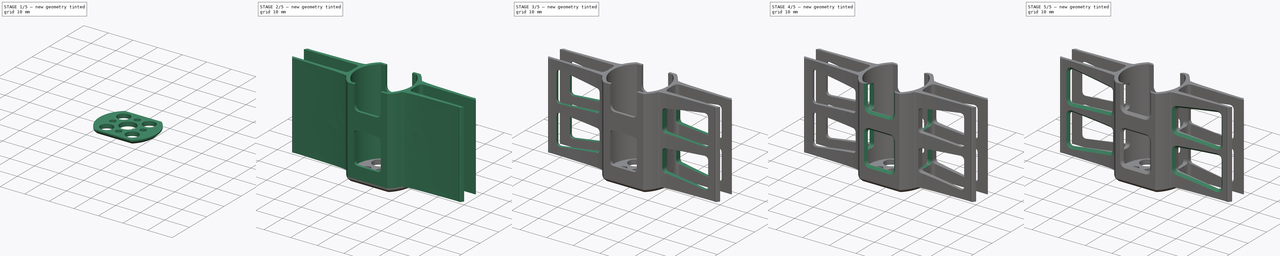
[diagram: build sequence overview — one tinted view per stage of 5, left to right]
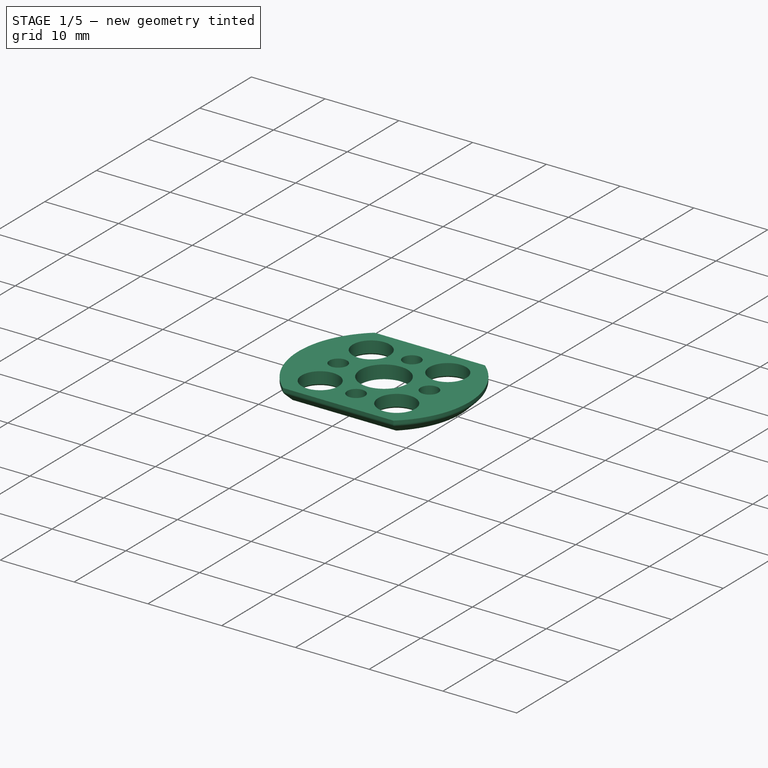
[diagram: stage 1 of 5 — iso view after this stage's code; geometry added in this stage tinted green]
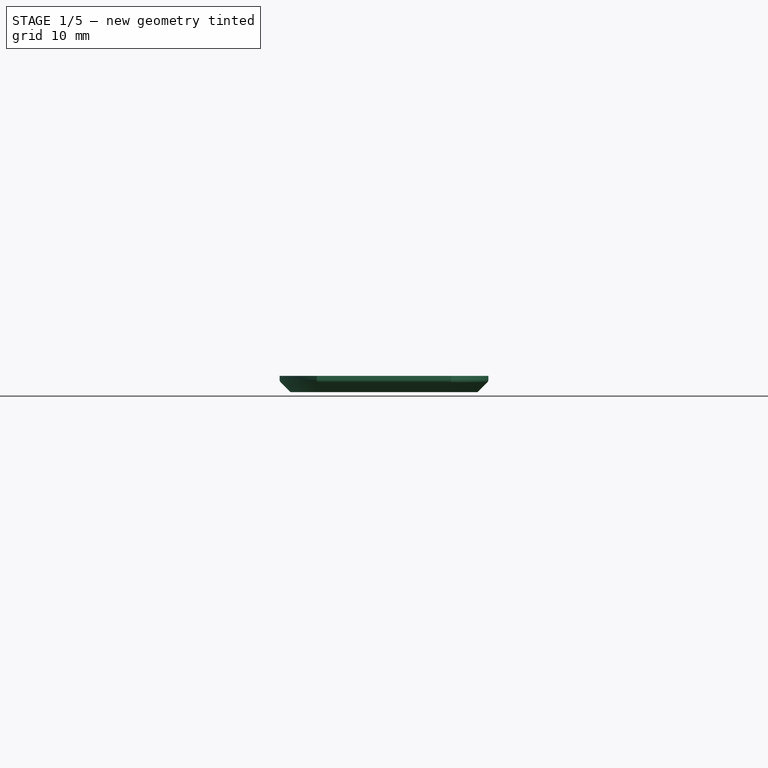
[diagram: stage 1 of 5 — front view after this stage's code; geometry added in this stage tinted green]
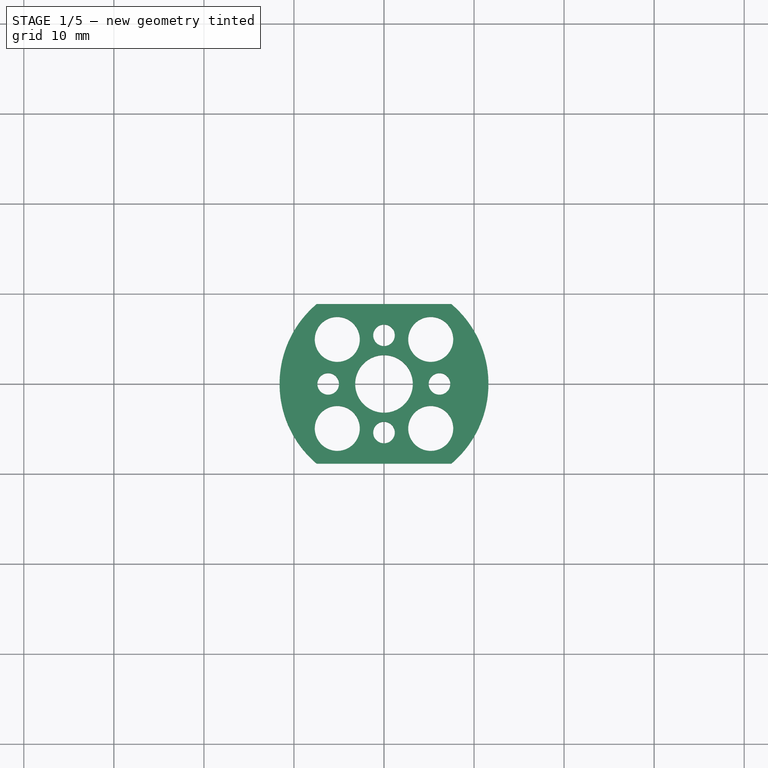
[diagram: stage 1 of 5 — top view after this stage's code; geometry added in this stage tinted green]
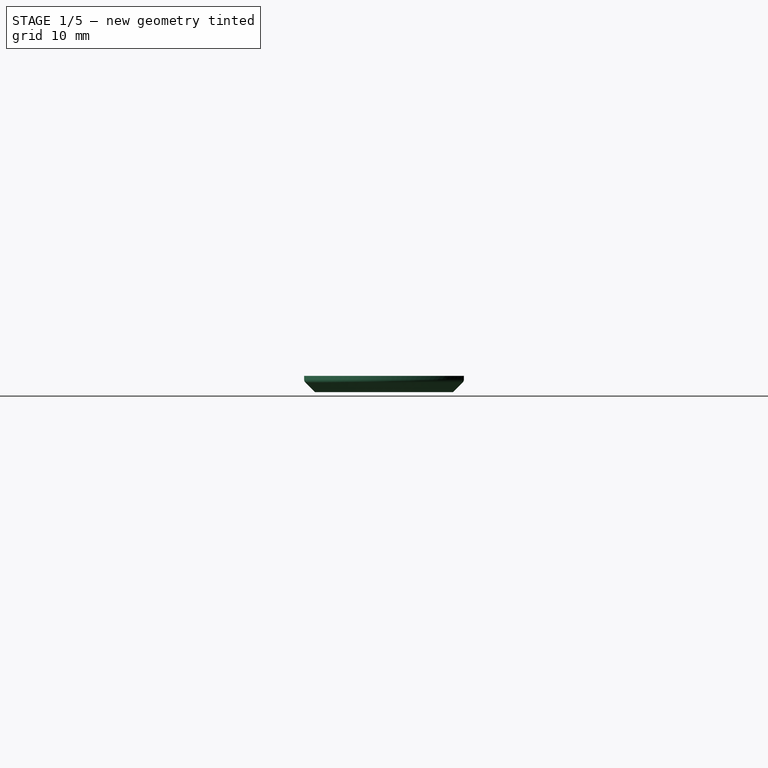
[diagram: stage 1 of 5 — right view after this stage's code; geometry added in this stage tinted green]
FCSTD DOCUMENT  (FreeCAD 0.19R0.19.2)
Label: 063
License: All rights reserved
LicenseURL: http://en.wikipedia.org/wiki/All_rights_reserved
objects: Part::Chamfer×7, Sketcher::SketchObject×6, Part::Extrusion×6, Part::Cut×4, Part::Fillet×1
note: 24 computed .brp shape members not serialized (recipe doc carries the construction recipe); baked Part::Feature solids carry a one-line shape summary decoded from their .brp

FEATURE [Sketcher::SketchObject] Sketch005  label="mainFront"
  FullyConstrained = true
  sketch-geometry (13):
    g0: LineSegment StartX=-7.4748 StartY=8.87059 StartZ=0 EndX=7.4748 EndY=8.87059 EndZ=0
    g1: LineSegment StartX=-7.4748 StartY=-8.87059 StartZ=0 EndX=7.4748 EndY=-8.87059 EndZ=0
    g2: ArcOfCircle CenterX=-3.45031e-07 CenterY=0 CenterZ=0 NormalX=0 NormalY=0 NormalZ=1 AngleXU=0 Radius=11.6 StartAngle=2.27101 EndAngle=4.01218
    g3: ArcOfCircle CenterX=-3.45031e-07 CenterY=0 CenterZ=0 NormalX=0 NormalY=0 NormalZ=1 AngleXU=0 Radius=11.6 StartAngle=5.4126 EndAngle=7.15377
    g4: Circle CenterX=-3.45031e-07 CenterY=0 CenterZ=0 NormalX=0 NormalY=0 NormalZ=1 AngleXU=0 Radius=3.2
    g5: Circle CenterX=-5.18896 CenterY=4.94337 CenterZ=0 NormalX=0 NormalY=0 NormalZ=1 AngleXU=0 Radius=2.5
    g6: Circle CenterX=5.18896 CenterY=4.94337 CenterZ=0 NormalX=0 NormalY=0 NormalZ=1 AngleXU=0 Radius=2.5
    g7: Circle CenterX=-3.45031e-07 CenterY=5.4 CenterZ=0 NormalX=0 NormalY=0 NormalZ=1 AngleXU=0 Radius=1.2
    g8: Circle CenterX=-3.45031e-07 CenterY=-5.4 CenterZ=0 NormalX=0 NormalY=0 NormalZ=1 AngleXU=0 Radius=1.2
    g9: Circle CenterX=-5.18896 CenterY=-4.94337 CenterZ=0 NormalX=0 NormalY=0 NormalZ=1 AngleXU=0 Radius=2.5
    g10: Circle CenterX=5.18896 CenterY=-4.94337 CenterZ=0 NormalX=0 NormalY=0 NormalZ=1 AngleXU=0 Radius=2.5
    g11: Circle CenterX=-6.2 CenterY=0 CenterZ=0 NormalX=0 NormalY=0 NormalZ=1 AngleXU=0 Radius=1.2
    g12: Circle CenterX=6.16076 CenterY=0 CenterZ=0 NormalX=0 NormalY=0 NormalZ=1 AngleXU=0 Radius=1.2
  constraints (19):
    c: Block(g0)
    c: Block(g1)
    c: Coincident(g2,g0)
    c: Coincident(g2,g1)
    c: Coincident(g3,g0)
    c: Coincident(g3,g1)
    c: Block(g3)
    c: Block(g2)
    c: Coincident(g4,g2)
    c: Block(g4)
    c: Block(g10)
    c: Block(g8)
    c: Block(g9)
    c: Block(g6)
    c: Block(g7)
    c: Block(g5)
    c: Block(g11)
    c: Block(g12)
    c: PointOnObject(g12,g-1)
FEATURE [Part::Extrusion] Extrude004  label="mainFront001"
  Base = -> Sketch005
  Dir = (0,0,1)
  DirMode = 2
  FaceMakerClass = Part::FaceMakerBullseye
  LengthFwd = 1.8
  LengthRev = 0
  Placement = pos=(0,0,-1.8) rot=(0,0,1;0rad)
  Solid = true
  Symmetric = false
FEATURE [Part::Chamfer] Chamfer005
  Base = -> Extrude004
  Edges = 4 edges r=1.2: [Edge3,Edge6,Edge9,Edge11]
FEATURE [Part::Fillet] Fillet
  Base = -> Chamfer005
  Edges = 4 edges r=0.5: [Edge4,Edge7,Edge23,Edge26]
FEATURE [Part::Chamfer] Chamfer006
  Base = -> Fillet
  Edges = 4 edges r=0.22: [Edge35,Edge37,Edge39,Edge41]
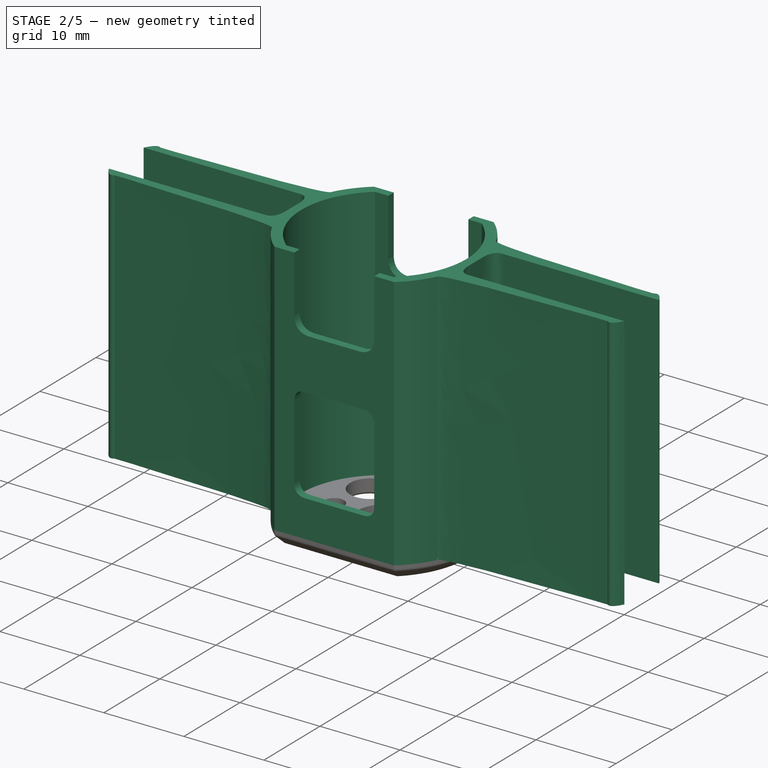
[diagram: stage 2 of 5 — iso view after this stage's code; geometry added in this stage tinted green]
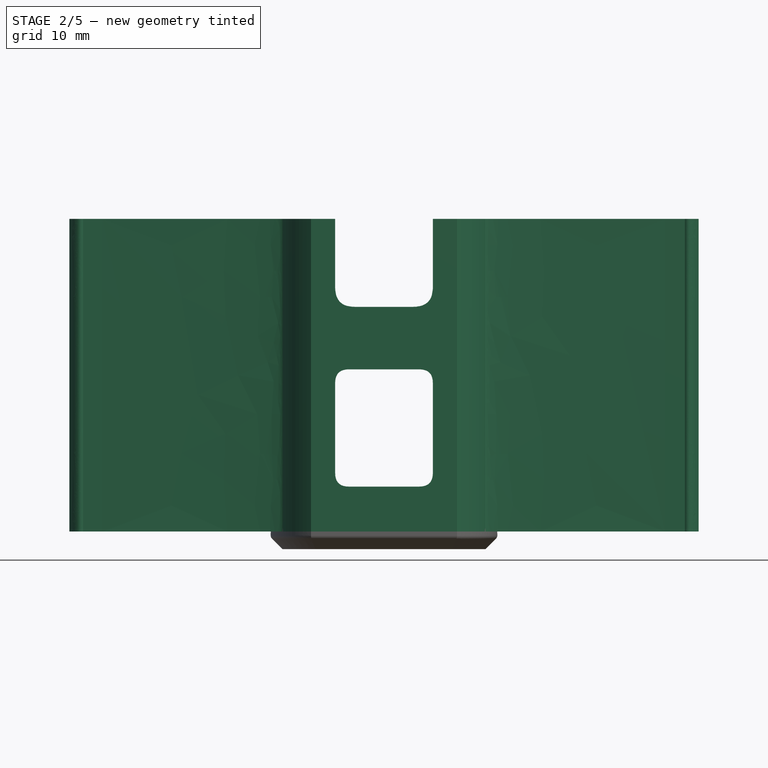
[diagram: stage 2 of 5 — front view after this stage's code; geometry added in this stage tinted green]
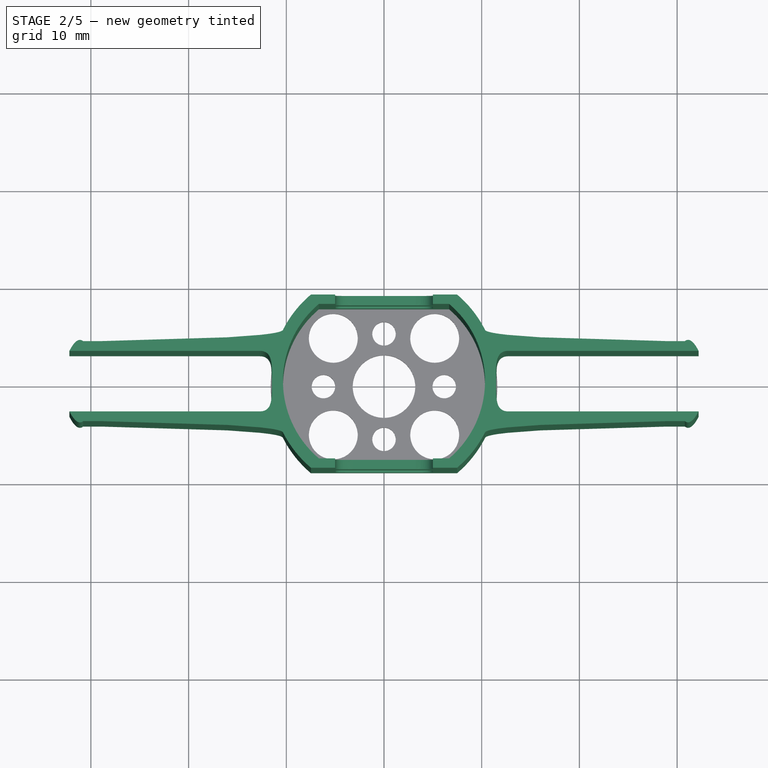
[diagram: stage 2 of 5 — top view after this stage's code; geometry added in this stage tinted green]
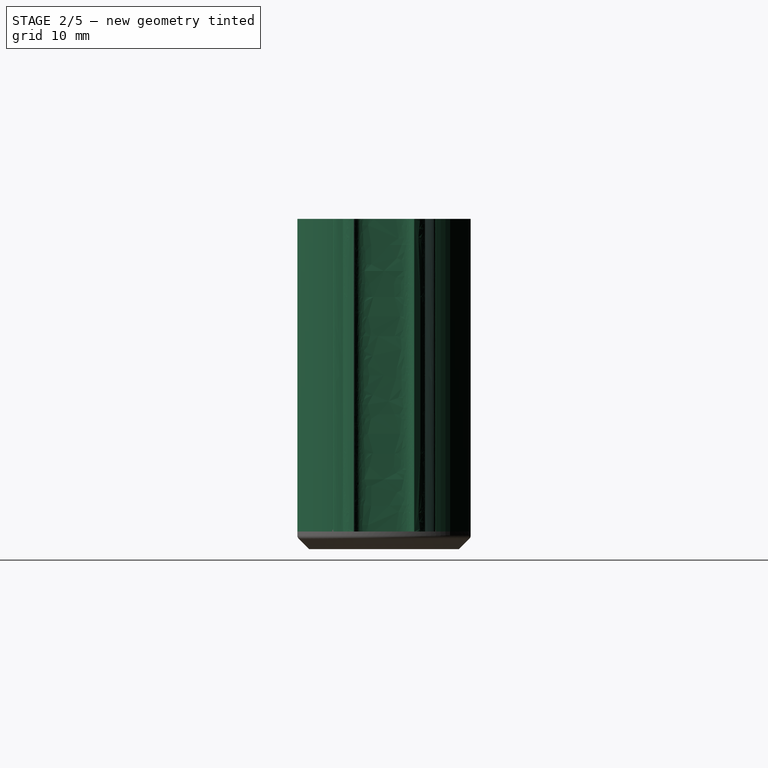
[diagram: stage 2 of 5 — right view after this stage's code; geometry added in this stage tinted green]
FEATURE [Sketcher::SketchObject] Sketch  label="main001"
  FullyConstrained = true
  sketch-geometry (68):
    g0: ArcOfCircle CenterX=-3.45031e-07 CenterY=-7.80683e-07 CenterZ=0 NormalX=0 NormalY=0 NormalZ=1 AngleXU=0 Radius=11.6 StartAngle=2.27101 EndAngle=2.66709
    g1: ArcOfCircle CenterX=-3.45031e-07 CenterY=-7.80687e-07 CenterZ=0 NormalX=0 NormalY=0 NormalZ=1 AngleXU=0 Radius=11.6 StartAngle=5.4126 EndAngle=5.80868
    g2: LineSegment StartX=-7.4748 StartY=8.87059 StartZ=0 EndX=7.4748 EndY=8.87059 EndZ=0
    g3: LineSegment StartX=-7.4748 StartY=-8.87059 StartZ=0 EndX=7.4748 EndY=-8.87059 EndZ=0
    g4: ArcOfCircle CenterX=-3.45031e-07 CenterY=-7.80683e-07 CenterZ=0 NormalX=0 NormalY=0 NormalZ=1 AngleXU=0 Radius=11.6 StartAngle=3.6161 EndAngle=4.01218
    g5: ArcOfCircle CenterX=-3.45031e-07 CenterY=-7.80687e-07 CenterZ=0 NormalX=0 NormalY=0 NormalZ=1 AngleXU=0 Radius=11.6 StartAngle=0.474503 EndAngle=0.870585
    g6: ArcOfCircle CenterX=-3.45031e-07 CenterY=-7.80683e-07 CenterZ=0 NormalX=0 NormalY=0 NormalZ=1 AngleXU=0 Radius=10.34 StartAngle=2.27101 EndAngle=4.01218
    g7: ArcOfCircle CenterX=-3.45031e-07 CenterY=-7.80683e-07 CenterZ=0 NormalX=0 NormalY=0 NormalZ=1 AngleXU=0 Radius=10.34 StartAngle=5.4126 EndAngle=7.15377
    g8: LineSegment StartX=-6.66287 StartY=7.90707 StartZ=0 EndX=6.66287 EndY=7.90707 EndZ=0
    g9: LineSegment StartX=-6.66287 StartY=-7.90707 StartZ=0 EndX=6.66287 EndY=-7.90707 EndZ=0
    g10: LineSegment StartX=-28.8 StartY=4.1 StartZ=0 EndX=-30.8 EndY=4.1 EndZ=0
    g11: BSplineCurve PolesCount=3 KnotsCount=2 Degree=2 IsPeriodic=0
    g12: LineSegment StartX=-30.2 StartY=3.1 StartZ=0 EndX=-32.2 EndY=3.1 EndZ=0
    g13: LineSegment StartX=-30.2 StartY=3.1 StartZ=0 EndX=-12.7274 EndY=3.1 EndZ=0
    g14: LineSegment StartX=-28.8 StartY=-4.1 StartZ=0 EndX=-30.8 EndY=-4.1 EndZ=0
    g15: BSplineCurve PolesCount=3 KnotsCount=2 Degree=2 IsPeriodic=0
    g16: LineSegment StartX=-30.2 StartY=-3.1 StartZ=0 EndX=-32.2 EndY=-3.1 EndZ=0
    g17: LineSegment StartX=-30.2 StartY=-3.1 StartZ=0 EndX=-12.7274 EndY=-3.1 EndZ=0
    g18: LineSegment StartX=28.8 StartY=4.1 StartZ=0 EndX=30.8 EndY=4.1 EndZ=0
    g19: BSplineCurve PolesCount=3 KnotsCount=2 Degree=2 IsPeriodic=0
    g20: LineSegment StartX=30.2 StartY=3.1 StartZ=0 EndX=32.2 EndY=3.1 EndZ=0
    g21: LineSegment StartX=30.2 StartY=3.1 StartZ=0 EndX=12.7274 EndY=3.1 EndZ=0
    g22: LineSegment StartX=28.8 StartY=-4.1 StartZ=0 EndX=30.8 EndY=-4.1 EndZ=0
    g23: BSplineCurve PolesCount=3 KnotsCount=2 Degree=2 IsPeriodic=0
    g24: LineSegment StartX=30.2 StartY=-3.1 StartZ=0 EndX=32.2 EndY=-3.1 EndZ=0
    g25: LineSegment StartX=30.2 StartY=-3.1 StartZ=0 EndX=12.7274 EndY=-3.1 EndZ=0
    g26-g30: Circle x5 (B-spline internal-alignment scaffolding for g31; pole/knot coordinates omitted)
    g31: BSplineCurve PolesCount=5 KnotsCount=3 Degree=3 IsPeriodic=0
    g32: GeomPoint X=-12.7274 Y=3.1 Z=0
    g33: GeomPoint X=-11.4637 Y=2.50004e-07 Z=0
    g34: GeomPoint X=-12.7274 Y=-3.1 Z=0
    g35-g39: Circle x5 (B-spline internal-alignment scaffolding for g40; pole/knot coordinates omitted)
    g40: BSplineCurve PolesCount=5 KnotsCount=3 Degree=3 IsPeriodic=0
    g41: GeomPoint X=12.7274 Y=-3.1 Z=0
    g42: GeomPoint X=11.4637 Y=2.49999e-07 Z=0
    g43: GeomPoint X=12.7274 Y=3.1 Z=0
    g44: Circle CenterX=-28.8 CenterY=4.1 CenterZ=0 NormalX=0 NormalY=0 NormalZ=1 AngleXU=0 Radius=1
    g45: Circle CenterX=-10.3184 CenterY=4.4 CenterZ=0 NormalX=0 NormalY=0 NormalZ=1 AngleXU=0 Radius=1
    g46: Circle CenterX=-10.3184 CenterY=5.3 CenterZ=0 NormalX=0 NormalY=0 NormalZ=1 AngleXU=0 Radius=1
    g47: BSplineCurve PolesCount=3 KnotsCount=2 Degree=2 IsPeriodic=0
    g48: GeomPoint X=-28.8 Y=4.1 Z=0
    g49: GeomPoint X=-10.3184 Y=5.3 Z=0
    g50: Circle CenterX=-28.8 CenterY=-4.1 CenterZ=0 NormalX=0 NormalY=0 NormalZ=1 AngleXU=0 Radius=1
    g51: Circle CenterX=-10.3184 CenterY=-4.4 CenterZ=0 NormalX=0 NormalY=0 NormalZ=1 AngleXU=0 Radius=1
    g52: Circle CenterX=-10.3184 CenterY=-5.3 CenterZ=0 NormalX=0 NormalY=0 NormalZ=1 AngleXU=0 Radius=1
    g53: BSplineCurve PolesCount=3 KnotsCount=2 Degree=2 IsPeriodic=0
    g54: GeomPoint X=-28.8 Y=-4.1 Z=0
    g55: GeomPoint X=-10.3184 Y=-5.3 Z=0
    g56: Circle CenterX=28.8 CenterY=4.1 CenterZ=0 NormalX=0 NormalY=0 NormalZ=1 AngleXU=0 Radius=1
    g57: Circle CenterX=10.3184 CenterY=4.4 CenterZ=0 NormalX=0 NormalY=0 NormalZ=1 AngleXU=0 Radius=1
    g58: Circle CenterX=10.3184 CenterY=5.3 CenterZ=0 NormalX=0 NormalY=0 NormalZ=1 AngleXU=0 Radius=1
    g59: BSplineCurve PolesCount=3 KnotsCount=2 Degree=2 IsPeriodic=0
    g60: GeomPoint X=28.8 Y=4.1 Z=0
    g61: GeomPoint X=10.3184 Y=5.3 Z=0
    g62: Circle CenterX=28.8 CenterY=-4.1 CenterZ=0 NormalX=0 NormalY=0 NormalZ=1 AngleXU=0 Radius=1
    g63: Circle CenterX=10.3184 CenterY=-4.4 CenterZ=0 NormalX=0 NormalY=0 NormalZ=1 AngleXU=0 Radius=1
    g64: Circle CenterX=10.3184 CenterY=-5.3 CenterZ=0 NormalX=0 NormalY=0 NormalZ=1 AngleXU=0 Radius=1
    g65: BSplineCurve PolesCount=3 KnotsCount=2 Degree=2 IsPeriodic=0
    g66: GeomPoint X=28.8 Y=-4.1 Z=0
    g67: GeomPoint X=10.3184 Y=-5.3 Z=0
  constraints (114):
    c: Block(g1)
    c: Block(g0)
    c: Coincident(g2,g0)
    c: Coincident(g2,g5)
    c: Horizontal(g2)
    c: Coincident(g3,g4)
    c: Coincident(g3,g1)
    c: Horizontal(g3)
    c: Equal(g0,g4)
    c: Coincident(g0,g4)
    c: Equal(g1,g5)
    c: Coincident(g1,g5)
    c: Block(g4)
    c: Block(g5)
    c: Coincident(g6,g0)
    c: Coincident(g7,g0)
    c: Block(g7)
    c: Block(g6)
    c: Coincident(g8,g6)
    c: Coincident(g8,g7)
    c: Horizontal(g8)
    c: Coincident(g9,g6)
    c: Coincident(g9,g7)
    c: Horizontal(g9)
    c: Block(g13)
    c: Coincident(g12,g13)
    c: Horizontal(g12)
    c: Block(g11)
    c: Coincident(g11,g12)
    c: Coincident(g10,g11)
    c: Horizontal(g10)
    c: Block(g17)
    c: Horizontal(g16)
    c: Coincident(g16,g17)
    c: Block(g15)
    c: Coincident(g15,g16)
    c: Coincident(g14,g15)
    c: Horizontal(g14)
    c: Block(g21)
    c: Coincident(g20,g21)
    c: Horizontal(g20)
    c: Block(g19)
    c: Coincident(g19,g20)
    c: Coincident(g18,g19)
    c: Horizontal(g18)
    c: Block(g25)
    c: Horizontal(g24)
    c: Coincident(g24,g25)
    c: Block(g23)
    c: Coincident(g23,g24)
    c: Coincident(g22,g23)
    c: Horizontal(g22)
    c: Coincident(g31,g13)
    c: Weight(g26) = 1
    c: Equal(g26, g27-g30) x4
    c: Coincident(g31,g17)
    c: InternalAlignment(g26-g30 -> g31) x5
    c: InternalAlignment(g32,g31)
    c: InternalAlignment(g33,g31)
    c: InternalAlignment(g34,g31)
    c: Block(g31)
    c: Coincident(g40,g25)
    c: Weight(g35) = 1
    c: Equal(g35, g36-g39) x4
    c: Coincident(g40,g21)
    c: InternalAlignment(g35-g39 -> g40) x5
    c: InternalAlignment(g41,g40)
    c: InternalAlignment(g42,g40)
    c: InternalAlignment(g43,g40)
    c: Block(g40)
    c: Coincident(g47,g10)
    c: Weight(g44) = 1
    c: Equal(g44,g45)
    c: Equal(g44,g46)
    c: Coincident(g47,g0)
    c: InternalAlignment(g44,g47)
    c: InternalAlignment(g45,g47)
    c: InternalAlignment(g46,g47)
    c: InternalAlignment(g48,g47)
    c: InternalAlignment(g49,g47)
    c: Block(g47)
    c: Coincident(g53,g14)
    c: Weight(g50) = 1
    c: Equal(g50,g51)
    c: Equal(g50,g52)
    c: Coincident(g53,g4)
    c: InternalAlignment(g50,g53)
    c: InternalAlignment(g51,g53)
    c: InternalAlignment(g52,g53)
    c: InternalAlignment(g54,g53)
    c: InternalAlignment(g55,g53)
    c: Coincident(g59,g18)
    c: Weight(g56) = 1
    c: Equal(g56,g57)
    c: Equal(g56,g58)
    c: Coincident(g59,g5)
    c: InternalAlignment(g56,g59)
    c: InternalAlignment(g57,g59)
    c: InternalAlignment(g58,g59)
    c: InternalAlignment(g60,g59)
    c: InternalAlignment(g61,g59)
    c: Coincident(g65,g22)
    c: Weight(g62) = 1
    c: Equal(g62,g63)
    c: Equal(g62,g64)
    c: Coincident(g65,g1)
    c: InternalAlignment(g62,g65)
    c: InternalAlignment(g63,g65)
    c: InternalAlignment(g64,g65)
    c: InternalAlignment(g66,g65)
    c: InternalAlignment(g67,g65)
    c: Block(g53)
    c: Block(g65)
    c: Block(g59)
FEATURE [Part::Extrusion] Extrude  label="main"
  Base = -> Sketch
  Dir = (0,0,1)
  DirMode = 2
  FaceMakerClass = Part::FaceMakerBullseye
  LengthFwd = 32
  LengthRev = 0
  Solid = true
  Symmetric = false
FEATURE [Sketcher::SketchObject] Sketch001  label="mainCollingAndStructuralHoles"
  FullyConstrained = true
  Placement = pos=(0,0,0) rot=(-1,0,0;4.71239rad)
  sketch-geometry (24):
    g0: Circle CenterX=-5 CenterY=2 CenterZ=0 NormalX=0 NormalY=0 NormalZ=1 AngleXU=0 Radius=1
    g1: Circle CenterX=-5 CenterY=0 CenterZ=0 NormalX=0 NormalY=0 NormalZ=1 AngleXU=0 Radius=1
    g2: Circle CenterX=-3 CenterY=4.6505e-12 CenterZ=0 NormalX=0 NormalY=0 NormalZ=1 AngleXU=0 Radius=1
    g3: BSplineCurve PolesCount=3 KnotsCount=2 Degree=2 IsPeriodic=0
    g4: GeomPoint X=-5 Y=2 Z=0
    g5: GeomPoint X=-3 Y=4.6505e-12 Z=0
    g6: Circle CenterX=5 CenterY=2 CenterZ=0 NormalX=0 NormalY=0 NormalZ=1 AngleXU=0 Radius=1
    g7: Circle CenterX=5 CenterY=4.6505e-12 CenterZ=0 NormalX=0 NormalY=0 NormalZ=1 AngleXU=0 Radius=1
    g8: Circle CenterX=3 CenterY=4.6505e-12 CenterZ=0 NormalX=0 NormalY=0 NormalZ=1 AngleXU=0 Radius=1
    g9: BSplineCurve PolesCount=3 KnotsCount=2 Degree=2 IsPeriodic=0
    g10: GeomPoint X=5 Y=2 Z=0
    g11: GeomPoint X=3 Y=4.6505e-12 Z=0
    g12: LineSegment StartX=5 StartY=2 StartZ=0 EndX=5 EndY=10 EndZ=0
    g13: LineSegment StartX=-5 StartY=2 StartZ=0 EndX=-5 EndY=10 EndZ=0
    g14: LineSegment StartX=-3 StartY=4.6505e-12 StartZ=0 EndX=3 EndY=4.6505e-12 EndZ=0
    g15: LineSegment StartX=-5 StartY=10 StartZ=0 EndX=5 EndY=10 EndZ=0
    g16: BSplineCurve PolesCount=3 KnotsCount=2 Degree=2 IsPeriodic=0
    g17: LineSegment StartX=-3.6 StartY=-18.4 StartZ=0 EndX=3.6 EndY=-18.4 EndZ=0
    g18: BSplineCurve PolesCount=3 KnotsCount=2 Degree=2 IsPeriodic=0
    g19: BSplineCurve PolesCount=3 KnotsCount=2 Degree=2 IsPeriodic=0
    g20: LineSegment StartX=-3.6 StartY=-6.4 StartZ=0 EndX=3.6 EndY=-6.4 EndZ=0
    g21: BSplineCurve PolesCount=3 KnotsCount=2 Degree=2 IsPeriodic=0
    g22: LineSegment StartX=5 StartY=-17 StartZ=0 EndX=5 EndY=-7.8 EndZ=0
    g23: LineSegment StartX=-5 StartY=-7.8 StartZ=0 EndX=-5 EndY=-17 EndZ=0
  constraints (47):
    c: Weight(g0) = 1
    c: Equal(g0,g1)
    c: Equal(g0,g2)
    c: InternalAlignment(g0,g3)
    c: InternalAlignment(g1,g3)
    c: InternalAlignment(g2,g3)
    c: InternalAlignment(g4,g3)
    c: InternalAlignment(g5,g3)
    c: Weight(g6) = 1
    c: Equal(g6,g7)
    c: Equal(g6,g8)
    c: InternalAlignment(g6,g9)
    c: InternalAlignment(g7,g9)
    c: InternalAlignment(g8,g9)
    c: InternalAlignment(g10,g9)
    c: InternalAlignment(g11,g9)
    c: Block(g3)
    c: Coincident(g13,g3)
    c: Block(g9)
    c: Coincident(g12,g9)
    c: Vertical(g12)
    c: Block(g12)
    c: Block(g13)
    c: Coincident(g14,g3)
    c: Coincident(g14,g9)
    c: Horizontal(g14)
    c: Coincident(g15,g13)
    c: Coincident(g15,g12)
    c: Horizontal(g15)
    c: Distance(g12) = 8
    c: Distance(g15) = 10
    c: Block(g16)
    c: Block(g18)
    c: Coincident(g17,g18)
    c: Coincident(g17,g16)
    c: Horizontal(g17)
    c: Block(g19)
    c: Block(g21)
    c: Coincident(g20,g21)
    c: Coincident(g20,g19)
    c: Horizontal(g20)
    c: Coincident(g22,g16)
    c: Coincident(g22,g19)
    c: Vertical(g22)
    c: Coincident(g23,g21)
    c: Coincident(g23,g18)
    c: Vertical(g23)
FEATURE [Part::Extrusion] Extrude001  label="mainCollingAndStructuralHoles001"
  Base = -> Sketch001
  Dir = (0,-1,3e-16)
  DirMode = 2
  FaceMakerClass = Part::FaceMakerBullseye
  LengthFwd = 20
  LengthRev = 0
  Placement = pos=(0,10,23) rot=(0,0,1;0rad)
  Solid = true
  Symmetric = false
FEATURE [Part::Cut] Cut  label="main002"
  Base = -> Extrude
  Tool = -> Extrude001
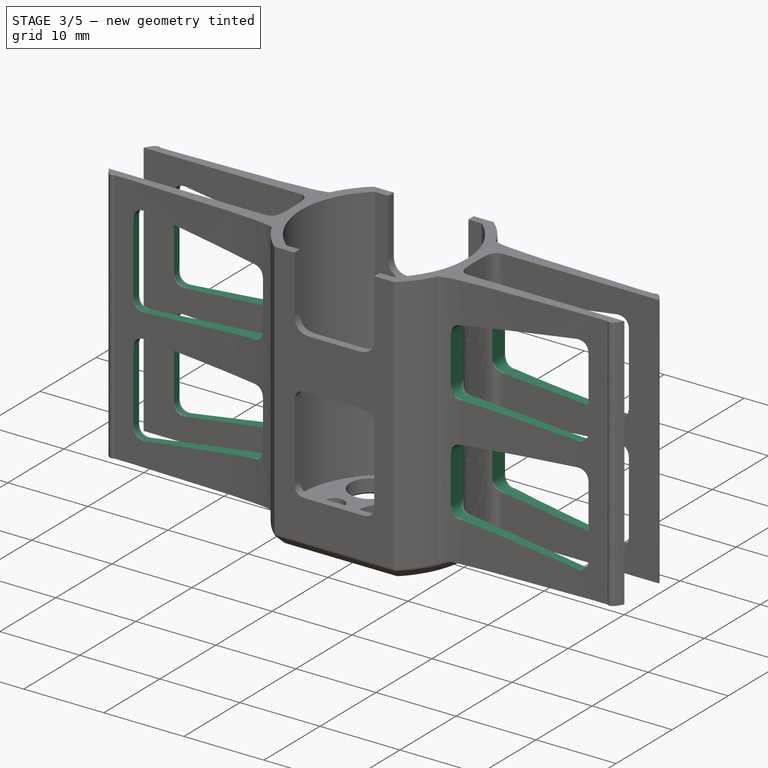
[diagram: stage 3 of 5 — iso view after this stage's code; geometry added in this stage tinted green]
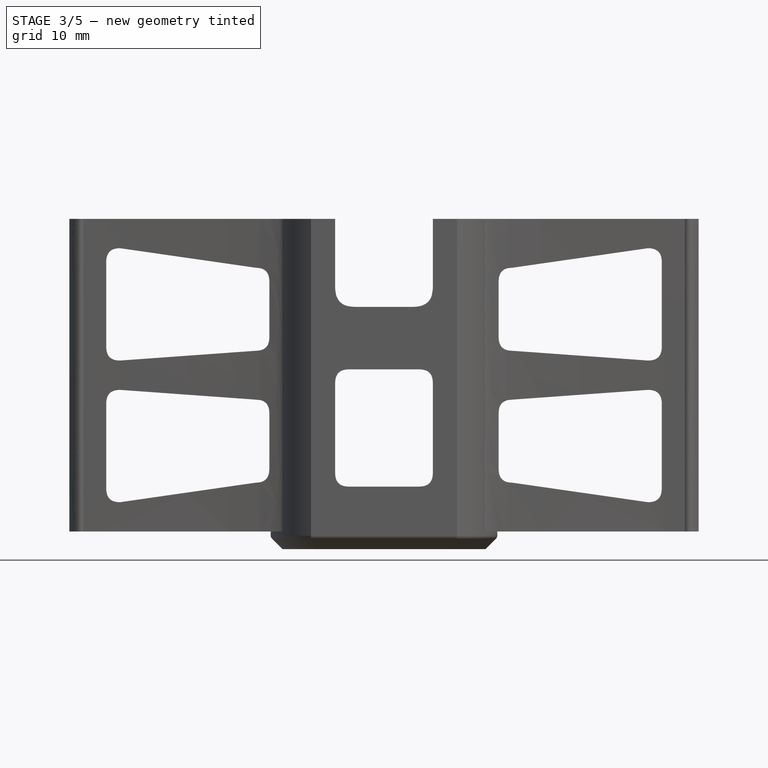
[diagram: stage 3 of 5 — front view after this stage's code; geometry added in this stage tinted green]
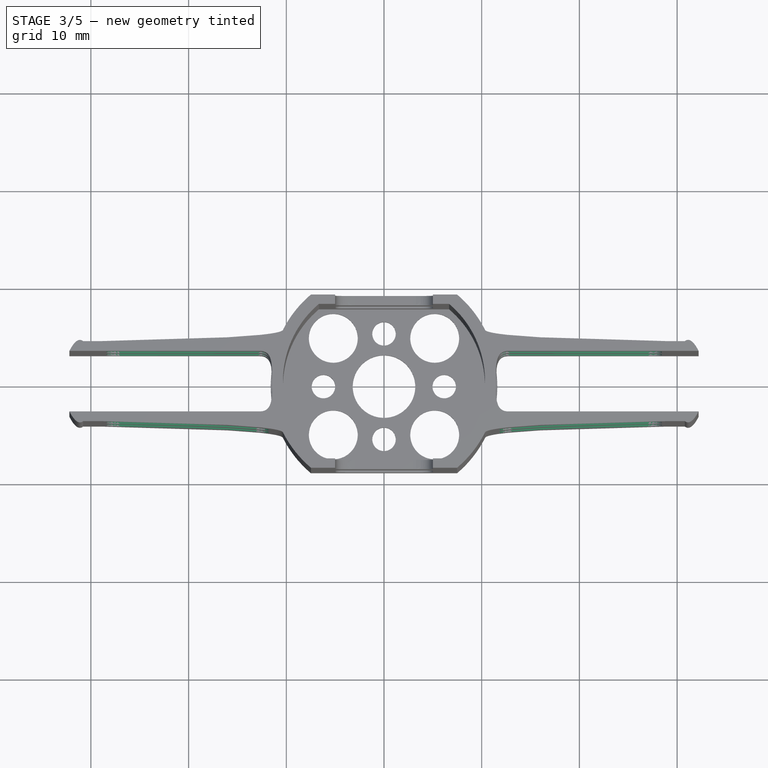
[diagram: stage 3 of 5 — top view after this stage's code; geometry added in this stage tinted green]
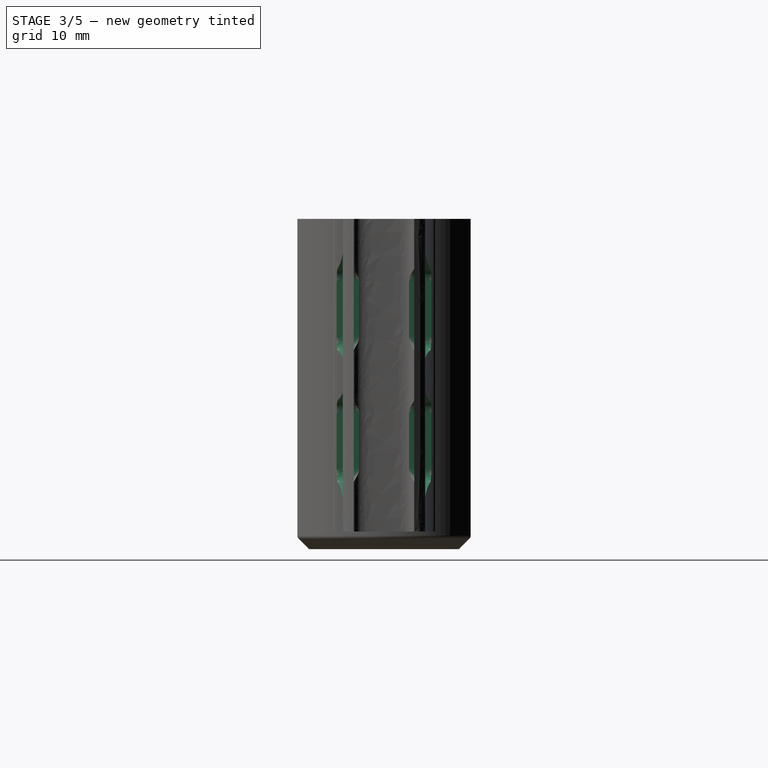
[diagram: stage 3 of 5 — right view after this stage's code; geometry added in this stage tinted green]
FEATURE [Sketcher::SketchObject] Sketch002  label="structuralHoles"
  FullyConstrained = true
  Placement = pos=(0,0,0) rot=(-1,0,0;4.71239rad)
  sketch-geometry (35):
    g0: LineSegment StartX=-28.43 StartY=13.1 StartZ=0 EndX=-28.43 EndY=4.4 EndZ=0
    g1: LineSegment StartX=-28.43 StartY=27.6 StartZ=0 EndX=-28.43 EndY=18.9 EndZ=0
    g2: Circle CenterX=-28.43 CenterY=27.6 CenterZ=0 NormalX=0 NormalY=0 NormalZ=1 AngleXU=0 Radius=1
    g3: Circle CenterX=-28.43 CenterY=29 CenterZ=0 NormalX=0 NormalY=0 NormalZ=1 AngleXU=0 Radius=1
    g4: Circle CenterX=-27.03 CenterY=29 CenterZ=0 NormalX=0 NormalY=0 NormalZ=1 AngleXU=0 Radius=1
    g5: BSplineCurve PolesCount=3 KnotsCount=2 Degree=2 IsPeriodic=0
    g6: GeomPoint X=-28.43 Y=27.6 Z=0
    g7: GeomPoint X=-27.03 Y=29 Z=0
    g8: Circle CenterX=-27.03 CenterY=17.5 CenterZ=0 NormalX=0 NormalY=0 NormalZ=1 AngleXU=0 Radius=1
    g9: Circle CenterX=-28.43 CenterY=17.5 CenterZ=0 NormalX=0 NormalY=0 NormalZ=1 AngleXU=0 Radius=1
    g10: Circle CenterX=-28.43 CenterY=18.9 CenterZ=0 NormalX=0 NormalY=0 NormalZ=1 AngleXU=0 Radius=1
    g11: BSplineCurve PolesCount=3 KnotsCount=2 Degree=2 IsPeriodic=0
    g12: GeomPoint X=-27.03 Y=17.5 Z=0
    g13: GeomPoint X=-28.43 Y=18.9 Z=0
    g14: Circle CenterX=-27.03 CenterY=14.5 CenterZ=0 NormalX=0 NormalY=0 NormalZ=1 AngleXU=0 Radius=1
    g15: Circle CenterX=-28.43 CenterY=14.5 CenterZ=0 NormalX=0 NormalY=0 NormalZ=1 AngleXU=0 Radius=1
    g16: Circle CenterX=-28.43 CenterY=13.1 CenterZ=0 NormalX=0 NormalY=0 NormalZ=1 AngleXU=0 Radius=1
    g17: BSplineCurve PolesCount=3 KnotsCount=2 Degree=2 IsPeriodic=0
    g18: GeomPoint X=-27.03 Y=14.5 Z=0
    g19: GeomPoint X=-28.43 Y=13.1 Z=0
    g20: Circle CenterX=-27.03 CenterY=3 CenterZ=0 NormalX=0 NormalY=0 NormalZ=1 AngleXU=0 Radius=1
    g21: Circle CenterX=-28.43 CenterY=3 CenterZ=0 NormalX=0 NormalY=0 NormalZ=1 AngleXU=0 Radius=1
    g22: Circle CenterX=-28.43 CenterY=4.4 CenterZ=0 NormalX=0 NormalY=0 NormalZ=1 AngleXU=0 Radius=1
    g23: BSplineCurve PolesCount=3 KnotsCount=2 Degree=2 IsPeriodic=0
    g24: GeomPoint X=-28.43 Y=4.4 Z=0
    g25: BSplineCurve PolesCount=3 KnotsCount=2 Degree=2 IsPeriodic=0
    g26: BSplineCurve PolesCount=3 KnotsCount=2 Degree=2 IsPeriodic=0
    g27: LineSegment StartX=-11.73 StartY=12.1 StartZ=0 EndX=-11.73 EndY=6.4 EndZ=0
    g28: BSplineCurve PolesCount=3 KnotsCount=2 Degree=2 IsPeriodic=0
    g29: BSplineCurve PolesCount=3 KnotsCount=2 Degree=2 IsPeriodic=0
    g30: LineSegment StartX=-11.73 StartY=25.6 StartZ=0 EndX=-11.73 EndY=19.9 EndZ=0
    g31: LineSegment StartX=-27.03 StartY=14.5 StartZ=0 EndX=-13.13 EndY=13.5 EndZ=0
    g32: LineSegment StartX=-27.03 StartY=3 StartZ=0 EndX=-13.13 EndY=5 EndZ=0
    g33: LineSegment StartX=-27.03 StartY=17.5 StartZ=0 EndX=-13.13 EndY=18.5 EndZ=0
    g34: LineSegment StartX=-27.03 StartY=29 StartZ=0 EndX=-13.13 EndY=27 EndZ=0
  constraints (61):
    c: Distance(g0) = 8.7
    c: Vertical(g0)
    c: Equal(g0,g1) = 8.7
    c: Vertical(g1)
    c: Weight(g2) = 1
    c: Equal(g2,g3)
    c: Equal(g2,g4)
    c: InternalAlignment(g2,g5)
    c: InternalAlignment(g3,g5)
    c: InternalAlignment(g4,g5)
    c: InternalAlignment(g6,g5)
    c: InternalAlignment(g7,g5)
    c: Weight(g8) = 1
    c: Equal(g8,g9)
    c: Equal(g8,g10)
    c: Coincident(g11,g1)
    c: InternalAlignment(g8,g11)
    c: InternalAlignment(g9,g11)
    c: InternalAlignment(g10,g11)
    c: InternalAlignment(g12,g11)
    c: InternalAlignment(g13,g11)
    c: Weight(g14) = 1
    c: Equal(g14,g15)
    c: Equal(g14,g16)
    c: Coincident(g17,g0)
    c: InternalAlignment(g14,g17)
    c: InternalAlignment(g15,g17)
    c: InternalAlignment(g16,g17)
    c: InternalAlignment(g18,g17)
    c: InternalAlignment(g19,g17)
    c: Weight(g20) = 1
    c: Equal(g20,g21)
    c: Equal(g20,g22)
    c: InternalAlignment(g20,g23)
    c: InternalAlignment(g21,g23)
    c: InternalAlignment(g22,g23)
    c: InternalAlignment(g24,g23)
    c: Block(g23)
    c: Block(g5)
    c: Block(g1)
    c: Block(g11)
    c: Block(g0)
    c: Block(g17)
    c: Vertical(g27)
    c: Coincident(g25,g27)
    c: Block(g27)
    c: Block(g25)
    c: Block(g26)
    c: Vertical(g30)
    c: Coincident(g28,g30)
    c: Block(g30)
    c: Block(g28)
    c: Block(g29)
    c: Coincident(g31,g17)
    c: Coincident(g31,g25)
    c: Coincident(g32,g23)
    c: Coincident(g32,g26)
    c: Coincident(g33,g11)
    c: Coincident(g33,g28)
    c: Coincident(g34,g5)
    c: Coincident(g34,g29)
FEATURE [Part::Extrusion] Extrude002  label="structuralHolesLeft"
  Base = -> Sketch002
  Dir = (0,-1,3e-16)
  DirMode = 2
  FaceMakerClass = Part::FaceMakerBullseye
  LengthFwd = 20
  LengthRev = 0
  Placement = pos=(0,10,0) rot=(0,0,1;0rad)
  Solid = true
  Symmetric = false
FEATURE [Sketcher::SketchObject] Sketch006  label="structuralHoles003"
  FullyConstrained = true
  Placement = pos=(0,0,0) rot=(1,0,0;1.5708rad)
  sketch-geometry (35):
    g0: LineSegment StartX=-28.43 StartY=13.1 StartZ=0 EndX=-28.43 EndY=4.4 EndZ=0
    g1: LineSegment StartX=-28.43 StartY=27.6 StartZ=0 EndX=-28.43 EndY=18.9 EndZ=0
    g2: Circle CenterX=-28.43 CenterY=27.6 CenterZ=0 NormalX=0 NormalY=0 NormalZ=1 AngleXU=0 Radius=1
    g3: Circle CenterX=-28.43 CenterY=29 CenterZ=0 NormalX=0 NormalY=0 NormalZ=1 AngleXU=0 Radius=1
    g4: Circle CenterX=-27.03 CenterY=29 CenterZ=0 NormalX=0 NormalY=0 NormalZ=1 AngleXU=0 Radius=1
    g5: BSplineCurve PolesCount=3 KnotsCount=2 Degree=2 IsPeriodic=0
    g6: GeomPoint X=-28.43 Y=27.6 Z=0
    g7: GeomPoint X=-27.03 Y=29 Z=0
    g8: Circle CenterX=-27.03 CenterY=17.5 CenterZ=0 NormalX=0 NormalY=0 NormalZ=1 AngleXU=0 Radius=1
    g9: Circle CenterX=-28.43 CenterY=17.5 CenterZ=0 NormalX=0 NormalY=0 NormalZ=1 AngleXU=0 Radius=1
    g10: Circle CenterX=-28.43 CenterY=18.9 CenterZ=0 NormalX=0 NormalY=0 NormalZ=1 AngleXU=0 Radius=1
    g11: BSplineCurve PolesCount=3 KnotsCount=2 Degree=2 IsPeriodic=0
    g12: GeomPoint X=-27.03 Y=17.5 Z=0
    g13: GeomPoint X=-28.43 Y=18.9 Z=0
    g14: Circle CenterX=-27.03 CenterY=14.5 CenterZ=0 NormalX=0 NormalY=0 NormalZ=1 AngleXU=0 Radius=1
    g15: Circle CenterX=-28.43 CenterY=14.5 CenterZ=0 NormalX=0 NormalY=0 NormalZ=1 AngleXU=0 Radius=1
    g16: Circle CenterX=-28.43 CenterY=13.1 CenterZ=0 NormalX=0 NormalY=0 NormalZ=1 AngleXU=0 Radius=1
    g17: BSplineCurve PolesCount=3 KnotsCount=2 Degree=2 IsPeriodic=0
    g18: GeomPoint X=-27.03 Y=14.5 Z=0
    g19: GeomPoint X=-28.43 Y=13.1 Z=0
    g20: Circle CenterX=-27.03 CenterY=3 CenterZ=0 NormalX=0 NormalY=0 NormalZ=1 AngleXU=0 Radius=1
    g21: Circle CenterX=-28.43 CenterY=3 CenterZ=0 NormalX=0 NormalY=0 NormalZ=1 AngleXU=0 Radius=1
    g22: Circle CenterX=-28.43 CenterY=4.4 CenterZ=0 NormalX=0 NormalY=0 NormalZ=1 AngleXU=0 Radius=1
    g23: BSplineCurve PolesCount=3 KnotsCount=2 Degree=2 IsPeriodic=0
    g24: GeomPoint X=-28.43 Y=4.4 Z=0
    g25: BSplineCurve PolesCount=3 KnotsCount=2 Degree=2 IsPeriodic=0
    g26: BSplineCurve PolesCount=3 KnotsCount=2 Degree=2 IsPeriodic=0
    g27: LineSegment StartX=-11.73 StartY=12.1 StartZ=0 EndX=-11.73 EndY=6.4 EndZ=0
    g28: BSplineCurve PolesCount=3 KnotsCount=2 Degree=2 IsPeriodic=0
    g29: BSplineCurve PolesCount=3 KnotsCount=2 Degree=2 IsPeriodic=0
    g30: LineSegment StartX=-11.73 StartY=25.6 StartZ=0 EndX=-11.73 EndY=19.9 EndZ=0
    g31: LineSegment StartX=-27.03 StartY=14.5 StartZ=0 EndX=-13.13 EndY=13.5 EndZ=0
    g32: LineSegment StartX=-27.03 StartY=3 StartZ=0 EndX=-13.13 EndY=5 EndZ=0
    g33: LineSegment StartX=-27.03 StartY=17.5 StartZ=0 EndX=-13.13 EndY=18.5 EndZ=0
    g34: LineSegment StartX=-27.03 StartY=29 StartZ=0 EndX=-13.13 EndY=27 EndZ=0
  constraints (61):
    c: Distance(g0) = 8.7
    c: Vertical(g0)
    c: Equal(g0,g1) = 8.7
    c: Vertical(g1)
    c: Weight(g2) = 1
    c: Equal(g2,g3)
    c: Equal(g2,g4)
    c: InternalAlignment(g2,g5)
    c: InternalAlignment(g3,g5)
    c: InternalAlignment(g4,g5)
    c: InternalAlignment(g6,g5)
    c: InternalAlignment(g7,g5)
    c: Weight(g8) = 1
    c: Equal(g8,g9)
    c: Equal(g8,g10)
    c: Coincident(g11,g1)
    c: InternalAlignment(g8,g11)
    c: InternalAlignment(g9,g11)
    c: InternalAlignment(g10,g11)
    c: InternalAlignment(g12,g11)
    c: InternalAlignment(g13,g11)
    c: Weight(g14) = 1
    c: Equal(g14,g15)
    c: Equal(g14,g16)
    c: Coincident(g17,g0)
    c: InternalAlignment(g14,g17)
    c: InternalAlignment(g15,g17)
    c: InternalAlignment(g16,g17)
    c: InternalAlignment(g18,g17)
    c: InternalAlignment(g19,g17)
    c: Weight(g20) = 1
    c: Equal(g20,g21)
    c: Equal(g20,g22)
    c: InternalAlignment(g20,g23)
    c: InternalAlignment(g21,g23)
    c: InternalAlignment(g22,g23)
    c: InternalAlignment(g24,g23)
    c: Block(g23)
    c: Block(g5)
    c: Block(g1)
    c: Block(g11)
    c: Block(g0)
    c: Block(g17)
    c: Vertical(g27)
    c: Coincident(g25,g27)
    c: Block(g27)
    c: Block(g25)
    c: Block(g26)
    c: Vertical(g30)
    c: Coincident(g28,g30)
    c: Block(g30)
    c: Block(g28)
    c: Block(g29)
    c: Coincident(g31,g17)
    c: Coincident(g31,g25)
    c: Coincident(g32,g23)
    c: Coincident(g32,g26)
    c: Coincident(g33,g11)
    c: Coincident(g33,g28)
    c: Coincident(g34,g5)
    c: Coincident(g34,g29)
FEATURE [Part::Extrusion] Extrude005  label="structuralHolesRight"
  Base = -> Sketch006
  Dir = (0,-1,3e-16)
  DirMode = 2
  FaceMakerClass = Part::FaceMakerBullseye
  LengthFwd = 20
  LengthRev = 0
  Placement = pos=(0,10,32) rot=(0,1,0;3.14159rad)
  Solid = true
  Symmetric = false
FEATURE [Part::Cut] Cut001  label="main003"
  Base = -> Cut
  Tool = -> Extrude002
FEATURE [Part::Cut] Cut002  label="main004"
  Base = -> Cut001
  Tool = -> Extrude005
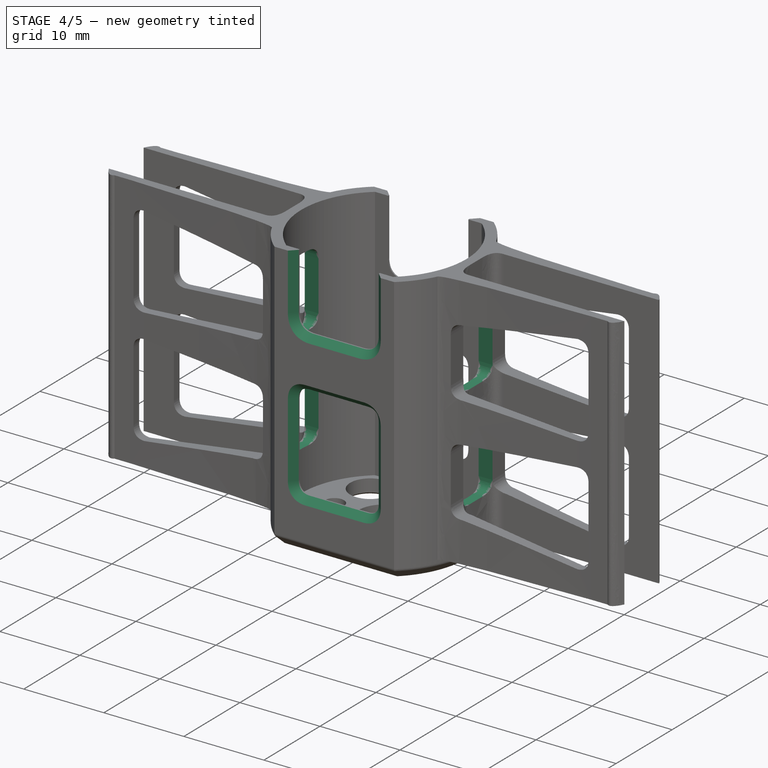
[diagram: stage 4 of 5 — iso view after this stage's code; geometry added in this stage tinted green]
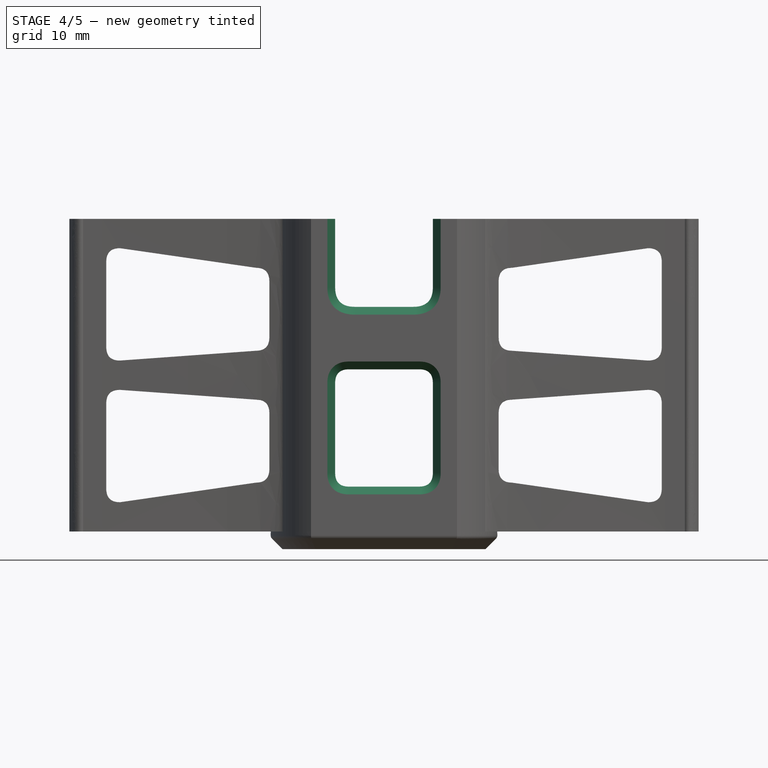
[diagram: stage 4 of 5 — front view after this stage's code; geometry added in this stage tinted green]
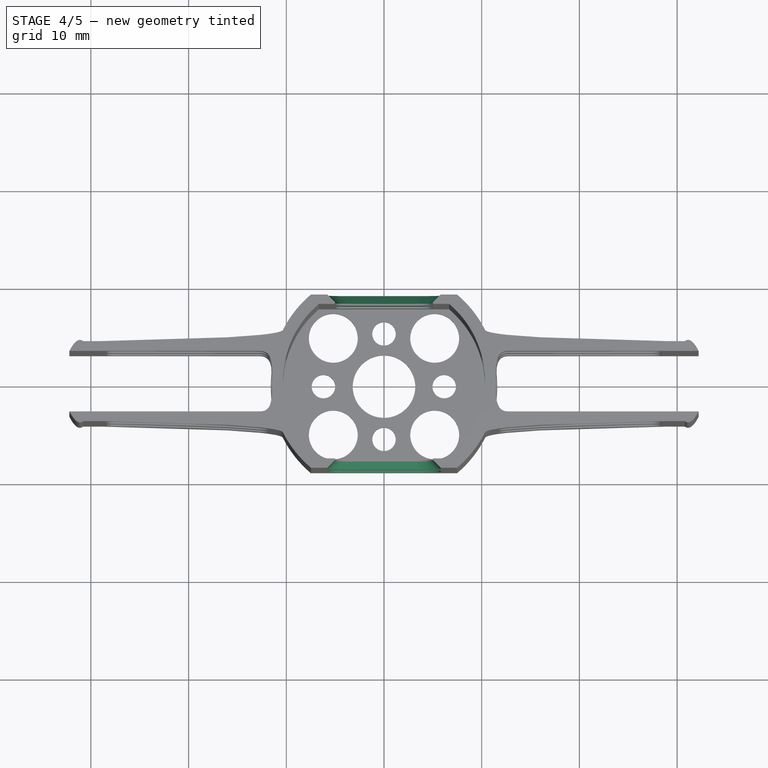
[diagram: stage 4 of 5 — top view after this stage's code; geometry added in this stage tinted green]
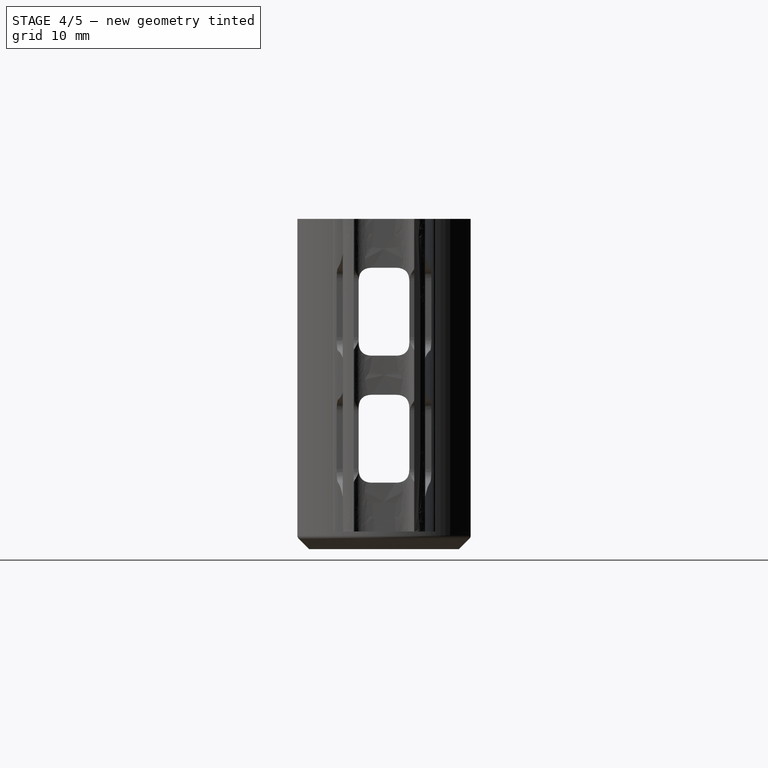
[diagram: stage 4 of 5 — right view after this stage's code; geometry added in this stage tinted green]
FEATURE [Sketcher::SketchObject] Sketch007  label="structuralHolesSide"
  FullyConstrained = true
  Placement = pos=(0,0,0) rot=(0.57735,0.57735,0.57735;2.0944rad)
  sketch-geometry (16):
    g0: BSplineCurve PolesCount=3 KnotsCount=2 Degree=2 IsPeriodic=0
    g1: BSplineCurve PolesCount=3 KnotsCount=2 Degree=2 IsPeriodic=0
    g2: LineSegment StartX=-1.2 StartY=12 StartZ=0 EndX=1.2 EndY=12 EndZ=0
    g3: BSplineCurve PolesCount=3 KnotsCount=2 Degree=2 IsPeriodic=0
    g4: BSplineCurve PolesCount=3 KnotsCount=2 Degree=2 IsPeriodic=0
    g5: LineSegment StartX=-1.2 StartY=8 StartZ=0 EndX=1.2 EndY=8 EndZ=0
    g6: BSplineCurve PolesCount=3 KnotsCount=2 Degree=2 IsPeriodic=0
    g7: BSplineCurve PolesCount=3 KnotsCount=2 Degree=2 IsPeriodic=0
    g8: LineSegment StartX=-1.2 StartY=-1 StartZ=0 EndX=1.2 EndY=-1 EndZ=0
    g9: BSplineCurve PolesCount=3 KnotsCount=2 Degree=2 IsPeriodic=0
    g10: BSplineCurve PolesCount=3 KnotsCount=2 Degree=2 IsPeriodic=0
    g11: LineSegment StartX=-1.2 StartY=21 StartZ=0 EndX=1.2 EndY=21 EndZ=0
    g12: LineSegment StartX=-2.6 StartY=19.6 StartZ=0 EndX=-2.6 EndY=13.4 EndZ=0
    g13: LineSegment StartX=2.6 StartY=19.6 StartZ=0 EndX=2.6 EndY=13.4 EndZ=0
    g14: LineSegment StartX=-2.6 StartY=6.6 StartZ=0 EndX=-2.6 EndY=0.4 EndZ=0
    g15: LineSegment StartX=2.6 StartY=6.6 StartZ=0 EndX=2.6 EndY=0.4 EndZ=0
  constraints (28):
    c: Horizontal(g2)
    c: Block(g1)
    c: Block(g0)
    c: Block(g2)
    c: Horizontal(g5)
    c: Block(g3)
    c: Block(g4)
    c: Block(g5)
    c: Horizontal(g8)
    c: Block(g6)
    c: Block(g7)
    c: Block(g8)
    c: Horizontal(g11)
    c: Block(g10)
    c: Block(g9)
    c: Block(g11)
    c: Coincident(g12,g9)
    c: Coincident(g12,g0)
    c: Vertical(g12)
    c: Coincident(g13,g10)
    c: Coincident(g13,g1)
    c: Vertical(g13)
    c: Coincident(g14,g4)
    c: Coincident(g14,g7)
    c: Vertical(g14)
    c: Coincident(g15,g3)
    c: Coincident(g15,g6)
    c: Vertical(g15)
FEATURE [Part::Extrusion] Extrude006  label="structuralHolesSide001"
  Base = -> Sketch007
  Dir = (1,0,0)
  DirMode = 2
  FaceMakerClass = Part::FaceMakerBullseye
  LengthFwd = 28
  LengthRev = 0
  Placement = pos=(-14,0,6) rot=(0,0,1;0rad)
  Solid = true
  Symmetric = false
FEATURE [Part::Cut] Cut003  label="main005"
  Base = -> Cut002
  Tool = -> Extrude006
FEATURE [Part::Chamfer] Chamfer
  Base = -> Cut003
  Edges = 4 edges r=0.8: [Edge116,Edge126,Edge226,Edge231]
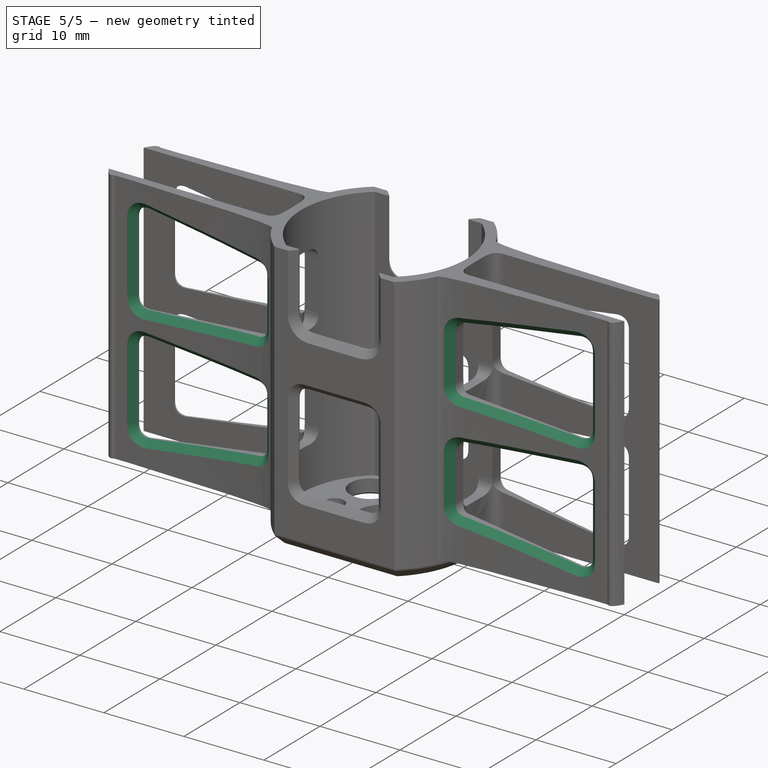
[diagram: stage 5 of 5 — iso view after this stage's code; geometry added in this stage tinted green]
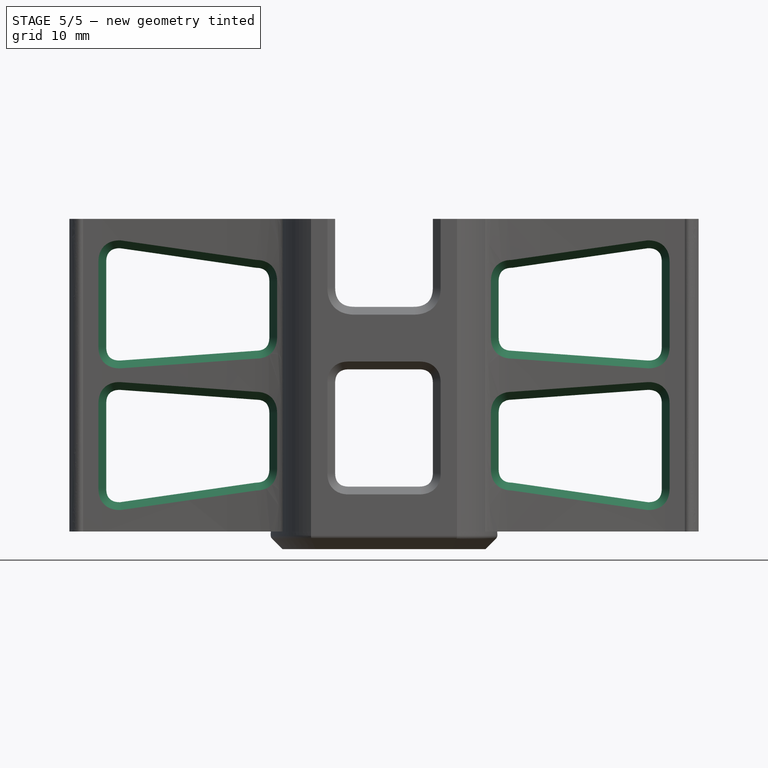
[diagram: stage 5 of 5 — front view after this stage's code; geometry added in this stage tinted green]
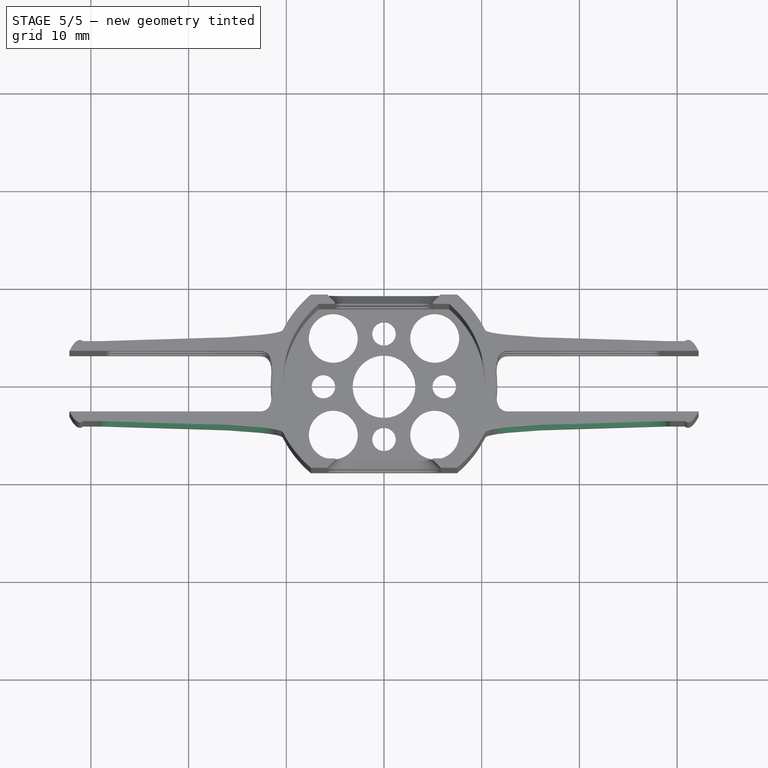
[diagram: stage 5 of 5 — top view after this stage's code; geometry added in this stage tinted green]
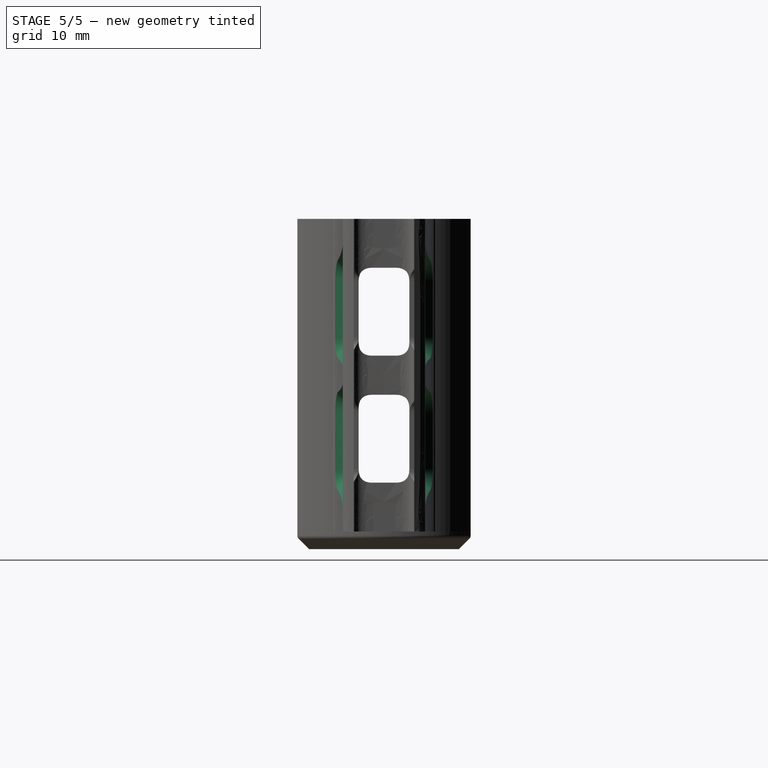
[diagram: stage 5 of 5 — right view after this stage's code; geometry added in this stage tinted green]
FEATURE [Part::Chamfer] Chamfer001
  Base = -> Chamfer
  Edges = 4 edges r=0.8: [Edge192,Edge199,Edge407,Edge416]
FEATURE [Part::Chamfer] Chamfer002
  Base = -> Chamfer001
  Edges = 4 edges r=0.8: [Edge4,Edge18,Edge154,Edge168]
FEATURE [Part::Chamfer] Chamfer003
  Base = -> Chamfer002
  Edges = 4 edges r=0.8: [Edge247,Edge256,Edge285,Edge292]
FEATURE [Part::Chamfer] Chamfer004
  Base = -> Chamfer003
  Edges = 4 edges r=0.8: [Edge15,Edge28,Edge258,Edge272]
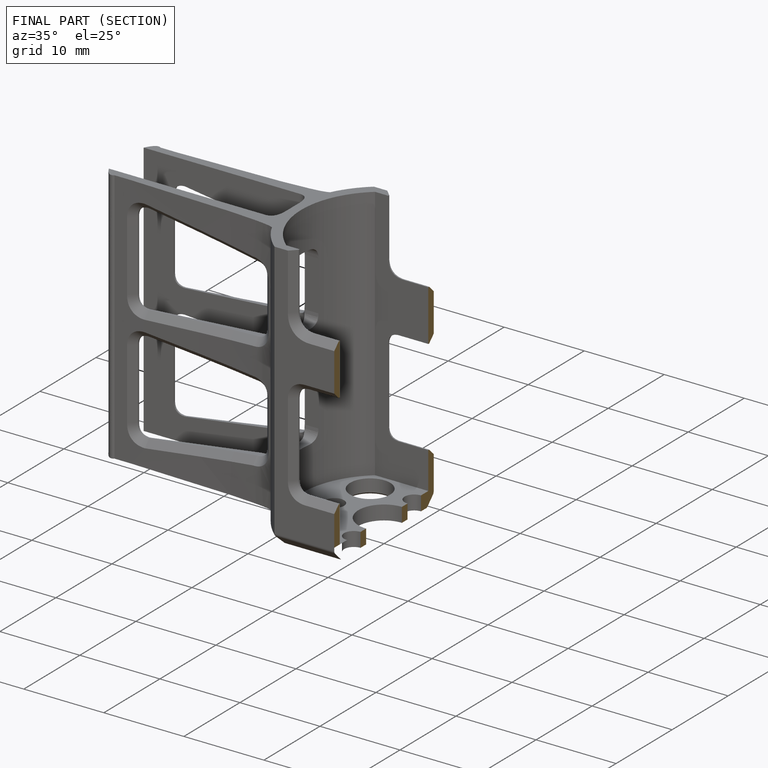
[diagram: finished part — half-section view (interior)]
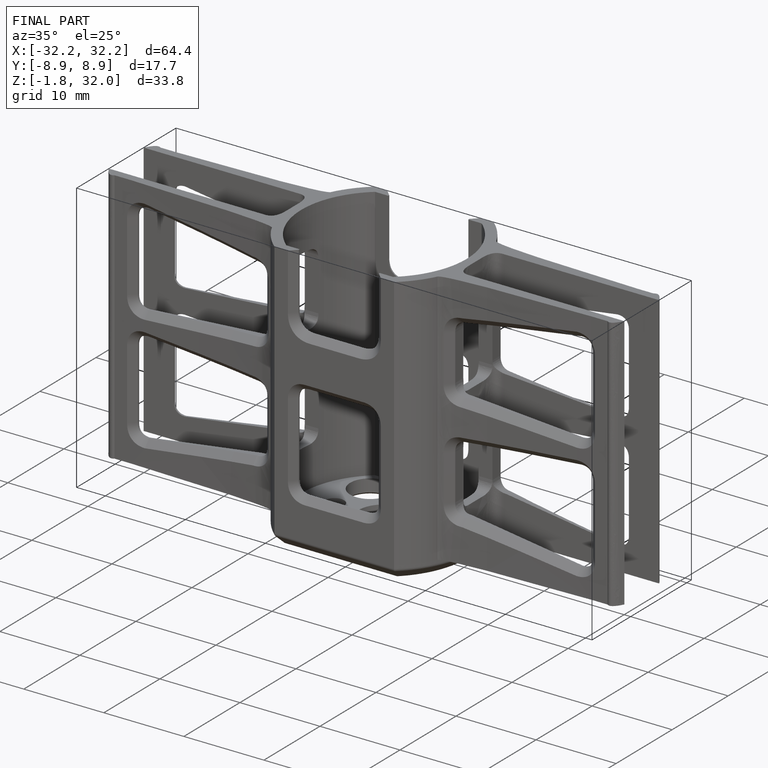
[diagram: finished part — iso view with bounding-box wireframe]
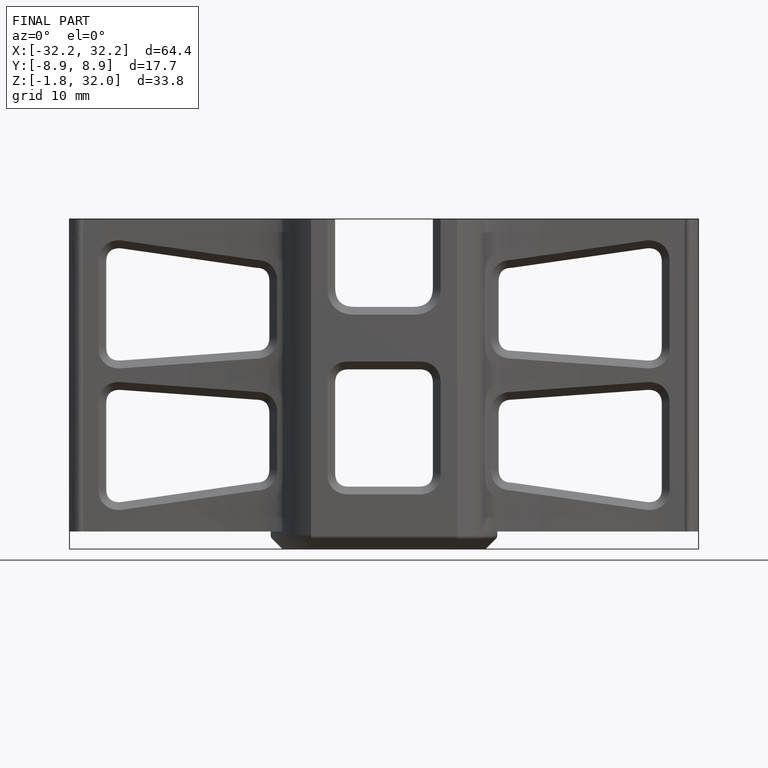
[diagram: finished part — front view with bounding-box wireframe]
